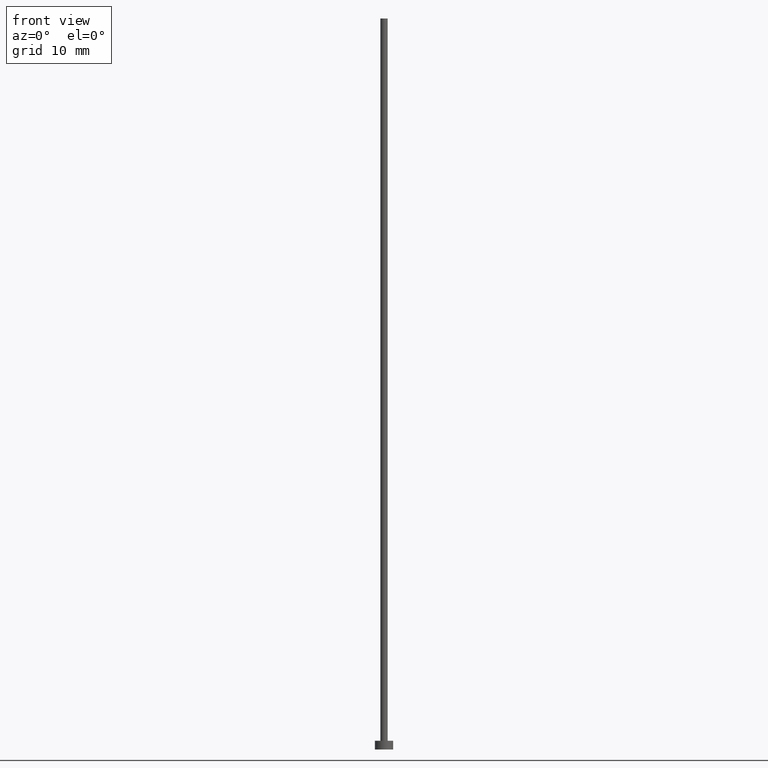
[diagram: clean part render]
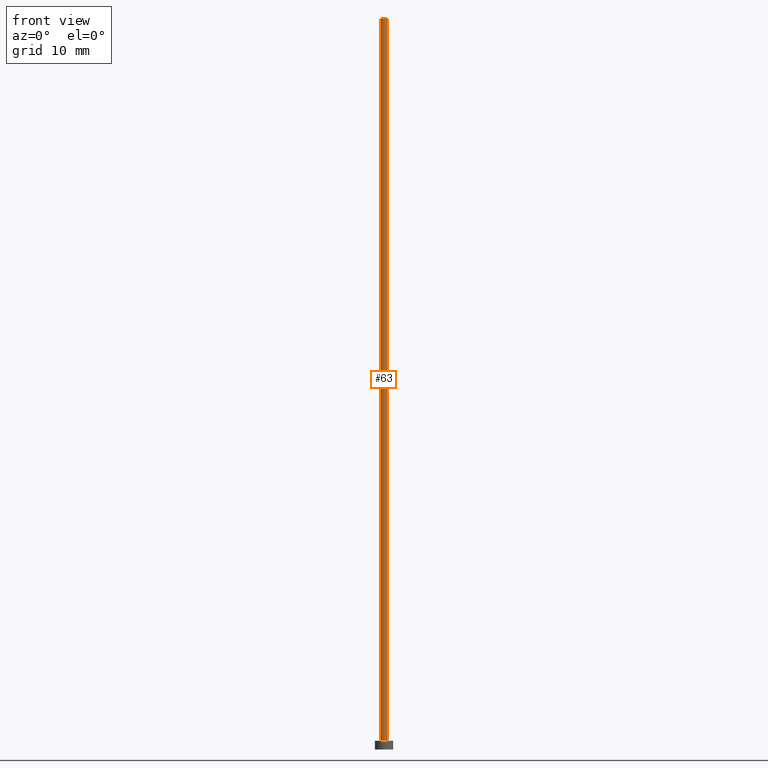
[diagram: same view with one face highlighted and labeled with its STEP entity id]
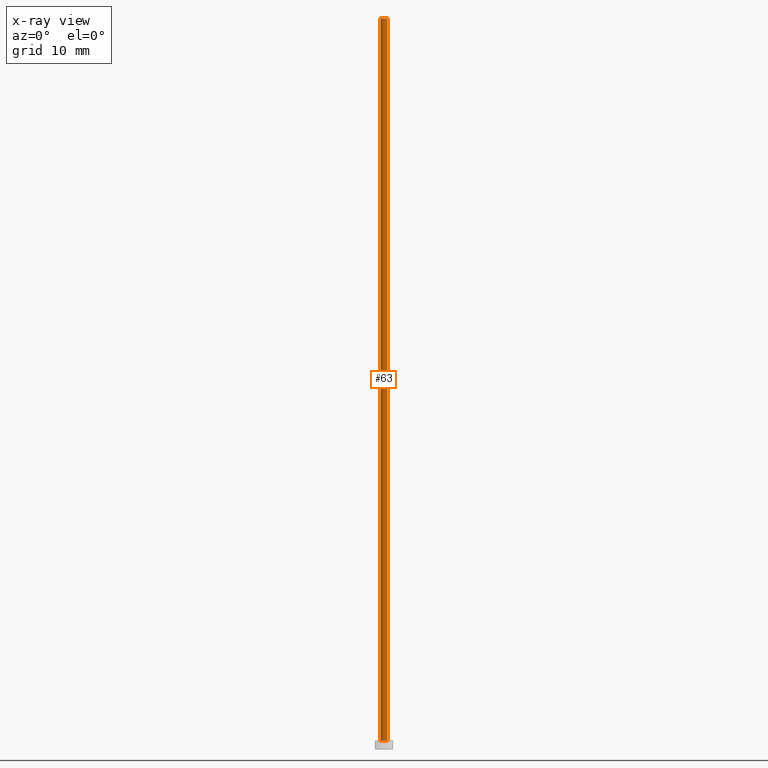
[diagram: x-ray of the same camera — body ghosted, the highlighted face saturated]
A machine part, front view. The second image highlights one B-rep face of the part: STEP entity #63.
The next image is the same camera in x-ray: the body ghosted, the highlighted face saturated — about 0% of this face is hidden behind the body in this view.
In plain terms, the highlighted cylindrical surface (edge-blend (fillet) strip) has radius 0.5 mm, axis along (-0, -0, -1).
Its self-contained STEP definition (entity closure, byte-faithful):
#3 = CARTESIAN_POINT ( 'NONE',  ( 0.000000000000000000, 0.000000000000000000, 1.199999999999999956 ) ) ;
#5 = DIRECTION ( 'NONE',  ( 1.000000000000000000, 0.000000000000000000, 0.000000000000000000 ) ) ;
#18 = VECTOR ( 'NONE', #222, 1000.000000000000000 ) ;
#20 = DIRECTION ( 'NONE',  ( -0.000000000000000000, -0.000000000000000000, -1.000000000000000000 ) ) ;
#30 = EDGE_CURVE ( 'NONE', #81, #91, #242, .T. ) ;
#43 = CIRCLE ( 'NONE', #130, 0.5000000000000000000 ) ;
#57 = EDGE_CURVE ( 'NONE', #139, #252, #43, .T. ) ;
#63 = ADVANCED_FACE ( 'NONE', ( #176 ), #236, .T. ) ;
#68 = CARTESIAN_POINT ( 'NONE',  ( 0.5000000000000000000, 6.123233995736766036E-17, 100.0000000000000000 ) ) ;
#78 = DIRECTION ( 'NONE',  ( -1.000000000000000000, 0.000000000000000000, 0.000000000000000000 ) ) ;
#81 = VERTEX_POINT ( 'NONE', #121 ) ;
#91 = VERTEX_POINT ( 'NONE', #163 ) ;
#93 = CARTESIAN_POINT ( 'NONE',  ( 0.000000000000000000, 0.000000000000000000, 100.0000000000000000 ) ) ;
#105 = CARTESIAN_POINT ( 'NONE',  ( -0.5000000000000000000, 0.000000000000000000, 100.0000000000000000 ) ) ;
#106 = CARTESIAN_POINT ( 'NONE',  ( 0.5000000000000000000, 6.123233995736766036E-17, 100.0000000000000000 ) ) ;
#115 = LINE ( 'NONE', #68, #18 ) ;
#121 = CARTESIAN_POINT ( 'NONE',  ( -0.5000000000000000000, 0.000000000000000000, 1.199999999999999956 ) ) ;
#127 = EDGE_CURVE ( 'NONE', #139, #81, #205, .T. ) ;
#130 = AXIS2_PLACEMENT_3D ( 'NONE', #93, #162, #220 ) ;
#139 = VERTEX_POINT ( 'NONE', #105 ) ;
#161 = ORIENTED_EDGE ( 'NONE', *, *, #30, .T. ) ;
#162 = DIRECTION ( 'NONE',  ( 0.000000000000000000, 0.000000000000000000, 1.000000000000000000 ) ) ;
#163 = CARTESIAN_POINT ( 'NONE',  ( 0.5000000000000000000, 6.123233995736766036E-17, 1.199999999999999956 ) ) ;
#171 = ORIENTED_EDGE ( 'NONE', *, *, #127, .T. ) ;
#173 = EDGE_LOOP ( 'NONE', ( #202, #229, #171, #161 ) ) ;
#176 = FACE_OUTER_BOUND ( 'NONE', #173, .T. ) ;
#181 = DIRECTION ( 'NONE',  ( -0.000000000000000000, -0.000000000000000000, -1.000000000000000000 ) ) ;
#187 = AXIS2_PLACEMENT_3D ( 'NONE', #3, #218, #5 ) ;
#193 = AXIS2_PLACEMENT_3D ( 'NONE', #198, #20, #78 ) ;
#198 = CARTESIAN_POINT ( 'NONE',  ( 0.000000000000000000, 0.000000000000000000, 100.0000000000000000 ) ) ;
#202 = ORIENTED_EDGE ( 'NONE', *, *, #206, .F. ) ;
#205 = LINE ( 'NONE', #240, #223 ) ;
#206 = EDGE_CURVE ( 'NONE', #252, #91, #115, .T. ) ;
#218 = DIRECTION ( 'NONE',  ( 0.000000000000000000, 0.000000000000000000, 1.000000000000000000 ) ) ;
#220 = DIRECTION ( 'NONE',  ( 1.000000000000000000, 0.000000000000000000, 0.000000000000000000 ) ) ;
#222 = DIRECTION ( 'NONE',  ( -0.000000000000000000, -0.000000000000000000, -1.000000000000000000 ) ) ;
#223 = VECTOR ( 'NONE', #181, 1000.000000000000000 ) ;
#229 = ORIENTED_EDGE ( 'NONE', *, *, #57, .F. ) ;
#236 = CYLINDRICAL_SURFACE ( 'NONE', #193, 0.5000000000000000000 ) ;
#240 = CARTESIAN_POINT ( 'NONE',  ( -0.5000000000000000000, 0.000000000000000000, 100.0000000000000000 ) ) ;
#242 = CIRCLE ( 'NONE', #187, 0.5000000000000000000 ) ;
#252 = VERTEX_POINT ( 'NONE', #106 ) ;